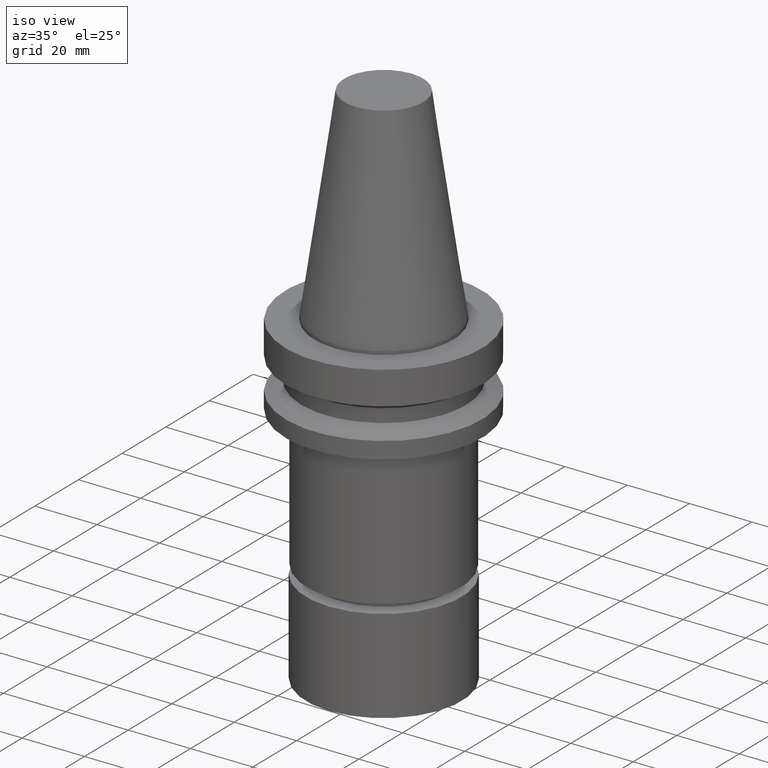
[diagram: clean part render]
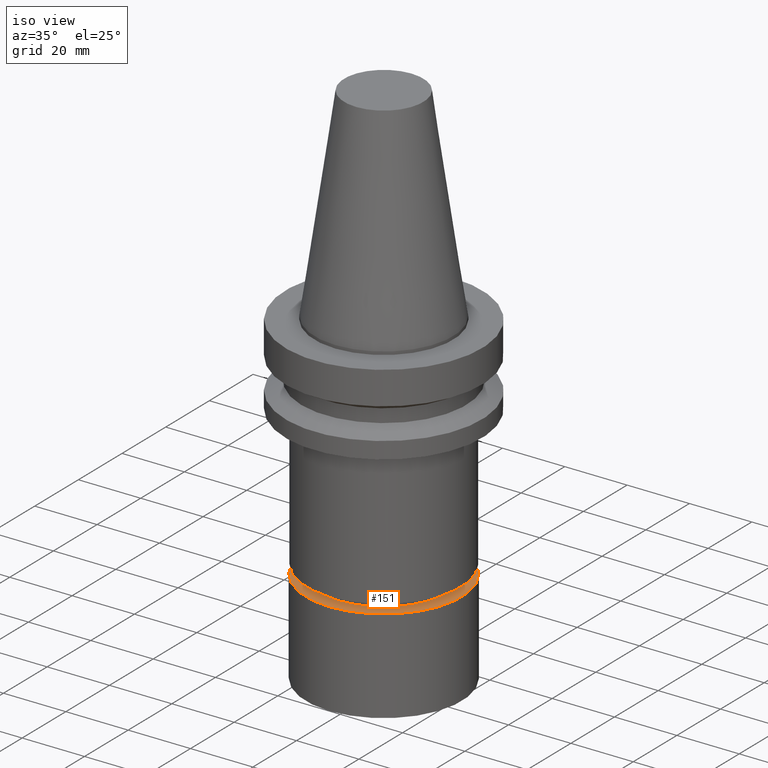
[diagram: same view with one face highlighted and labeled with its STEP entity id]
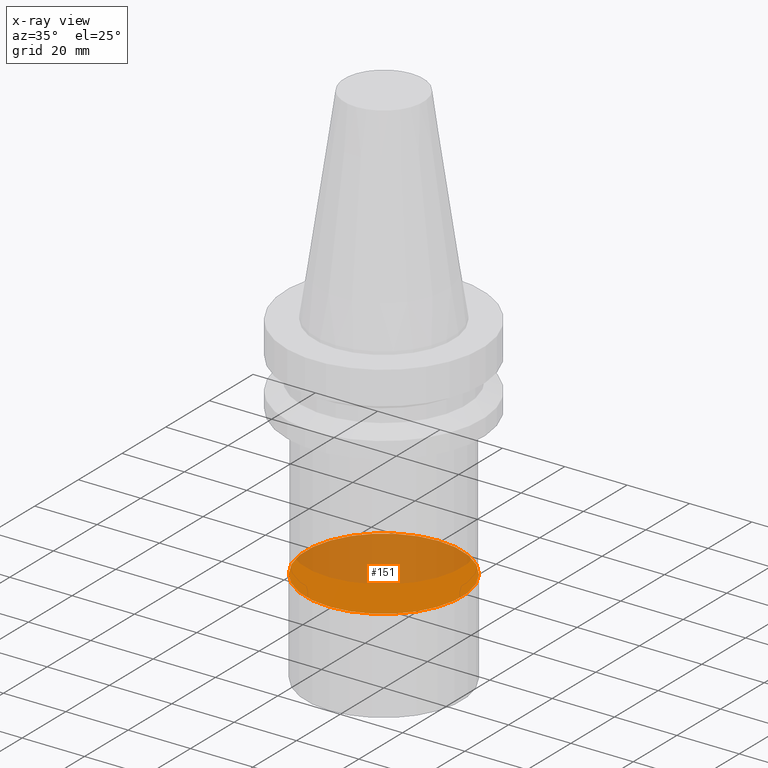
[diagram: x-ray of the same camera — body ghosted, the highlighted face saturated]
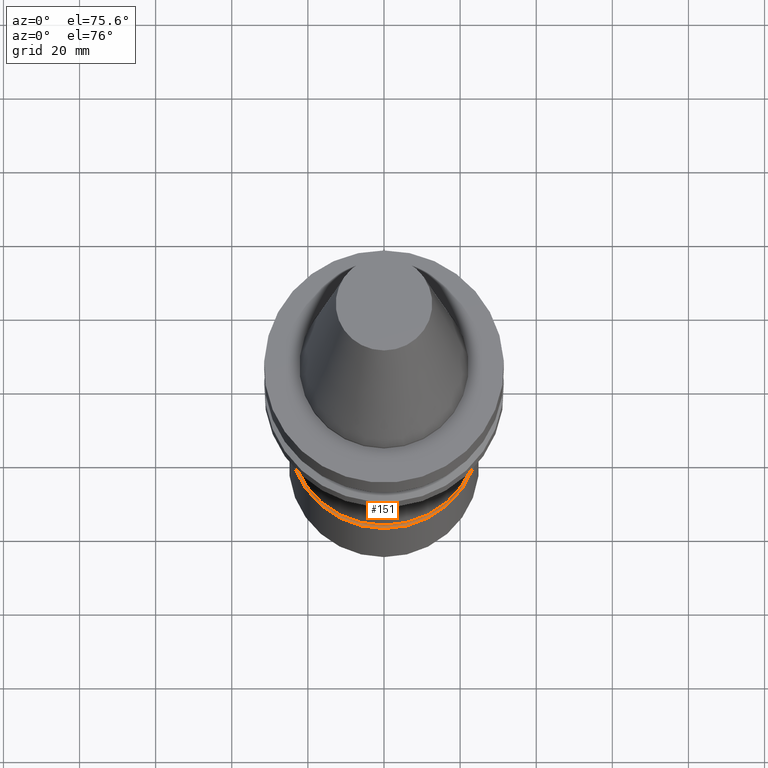
[diagram: same view with one face highlighted and labeled with its STEP entity id]
A machine part, iso view. The second image highlights one B-rep face of the part: STEP entity #151.
The next image is the same camera in x-ray: the body ghosted, the highlighted face saturated — about 54% of this face is hidden behind the body in this view.
A second angle (auxiliary view) of the same face is appended — the face is thin or edge-on in the first view.
In plain terms, the highlighted planar face has unit normal (-0, -0, 1).
Its self-contained STEP definition (entity closure, byte-faithful):
#93=EDGE_CURVE('Unnamed[1]',#228,#228,#229,.T.);
#151=ADVANCED_FACE('Unnamed[1]',(#317),#318,.T.);
#228=VERTEX_POINT('',#410);
#229=CIRCLE('',#411,24.9999999999999);
#317=FACE_OUTER_BOUND('',#520,.T.);
#318=PLANE('',#521);
#410=CARTESIAN_POINT('',(4.5801790288111E-015,25.0,-74.8));
#411=AXIS2_PLACEMENT_3D('',#608,#609,#610);
#520=EDGE_LOOP('',(#707));
#521=AXIS2_PLACEMENT_3D('',#708,#709,#710);
#608=CARTESIAN_POINT('',(4.5801790288111E-015,7.44949496096127E-014,-74.8));
#609=DIRECTION('',(6.12323399573677E-017,-1.89333969125273E-017,-1.0));
#610=DIRECTION('',(-3.66781653447338E-033,1.0,-1.89333969125273E-017));
#707=ORIENTED_EDGE('',*,*,#93,.F.);
#708=CARTESIAN_POINT('',(4.5801790288111E-015,12.5,-74.8));
#709=DIRECTION('',(-6.12323399573677E-017,-1.22464679914735E-016,1.0));
#710=DIRECTION('',(1.23259516440783E-032,-1.0,-1.22464679914735E-016));